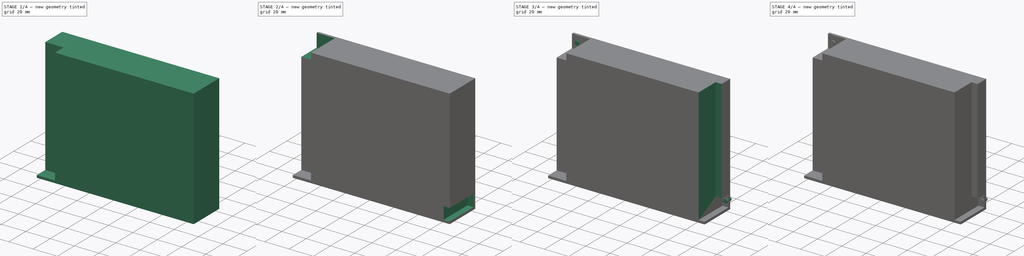
[diagram: build sequence overview — one tinted view per stage of 4, left to right]
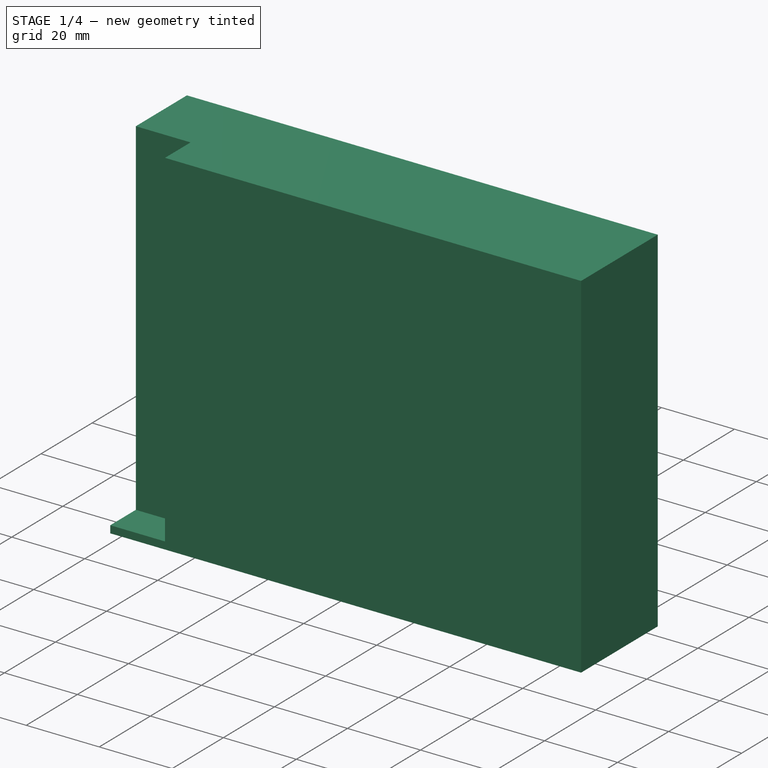
[diagram: stage 1 of 4 — iso view after this stage's code; geometry added in this stage tinted green]
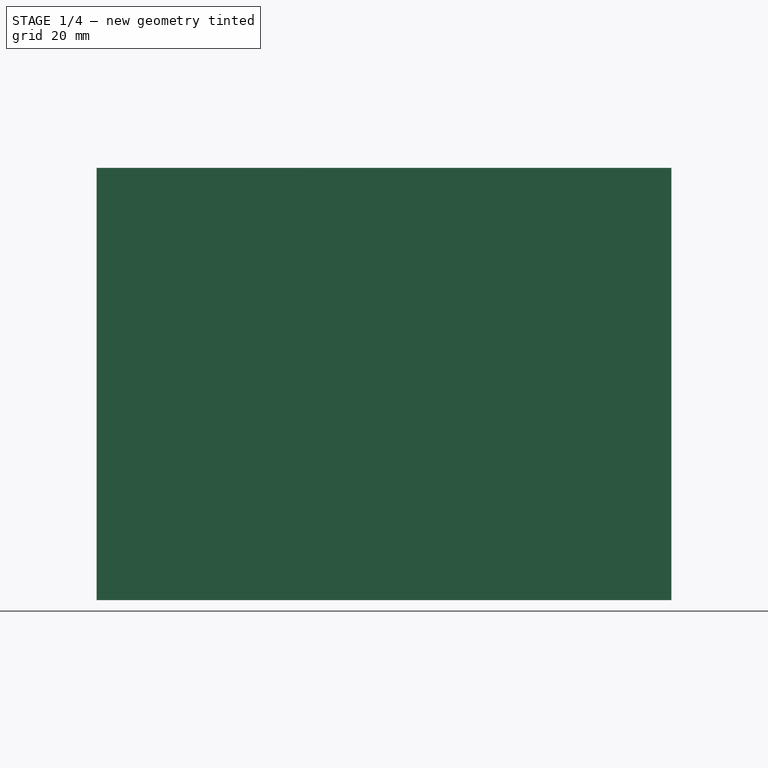
[diagram: stage 1 of 4 — front view after this stage's code; geometry added in this stage tinted green]
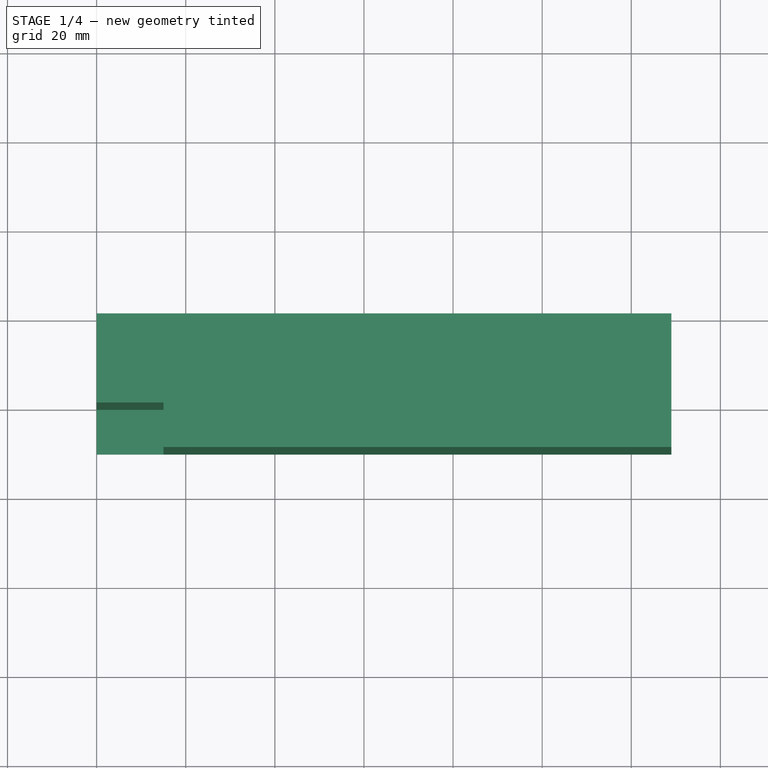
[diagram: stage 1 of 4 — top view after this stage's code; geometry added in this stage tinted green]
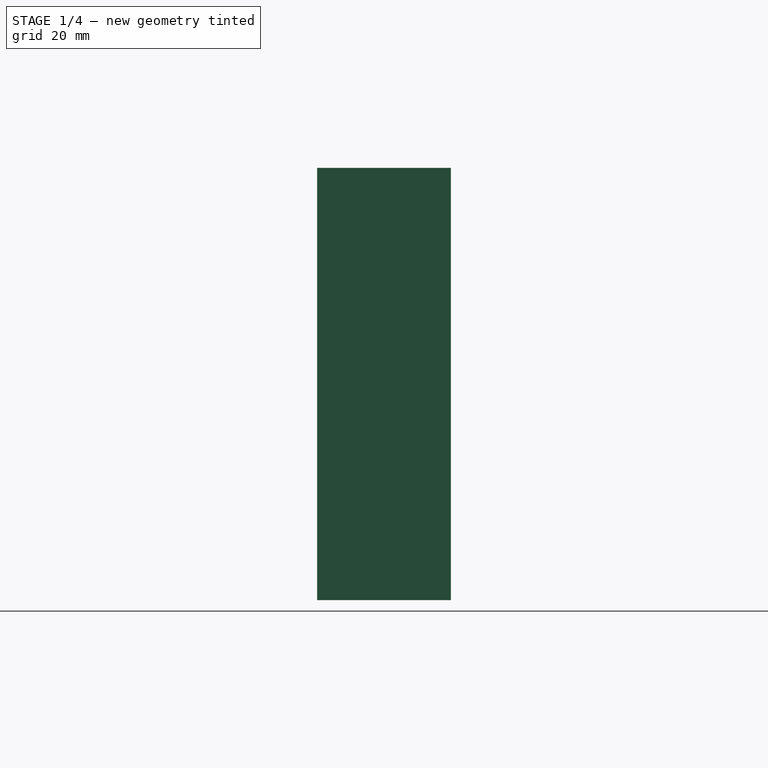
[diagram: stage 1 of 4 — right view after this stage's code; geometry added in this stage tinted green]
FCSTD DOCUMENT  (FreeCAD 0.19R24291 (Git))
Label: powersup
License: All rights reserved
LicenseURL: http://en.wikipedia.org/wiki/All_rights_reserved
objects: PartDesign::SubtractiveBox×4, PartDesign::AdditiveCylinder×4, Sketcher::SketchObject×1, PartDesign::Pad×1, PartDesign::Body×1
note: 20 computed .brp shape members not serialized (recipe doc carries the construction recipe); baked Part::Feature solids carry a one-line shape summary decoded from their .brp

FEATURE [Sketcher::SketchObject] Sketch
  FullyConstrained = false
  MapMode = 5
  Placement = pos=(0,0,0) rot=(1,0,0;1.5708rad)
  Support = -> [XZ_Plane]
  sketch-geometry (4):
    g0: LineSegment StartX=0 StartY=0 StartZ=0 EndX=129 EndY=0 EndZ=0
    g1: LineSegment StartX=129 StartY=0 StartZ=0 EndX=129 EndY=97 EndZ=0
    g2: LineSegment StartX=129 StartY=97 StartZ=0 EndX=0 EndY=97 EndZ=0
    g3: LineSegment StartX=0 StartY=97 StartZ=0 EndX=0 EndY=0 EndZ=0
  constraints (9):
    c: Coincident(g0,g1)
    c: Coincident(g1,g2)
    c: Coincident(g2,g3)
    c: Coincident(g3,g0)
    c: Horizontal(g0)
    c: Horizontal(g2)
    c: Vertical(g1)
    c: Vertical(g3)
    c: Coincident(g0,g-1)
FEATURE [PartDesign::Pad] Pad
  Direction = (1,1,1)
  Length = 30
  Length2 = 100
  Placement = pos=(0,0,0) rot=(1,0,0;1.5708rad)
  Profile = -> Sketch
  Refine = true
  Type = 0
FEATURE [PartDesign::SubtractiveBox] Box  label="cutoutabovescrews"
  AttacherType = Attacher::AttachEngine3D
  AttachmentOffset = pos=(0,2,-10) rot=(0,0,1;0rad)
  BaseFeature = -> Pad
  Height = 10
  Length = 15
  MapMode = 5
  Placement = pos=(0,-20,2) rot=(1,0,0;1.5708rad)
  Refine = true
  Support = -> [Pad]
  Width = 95
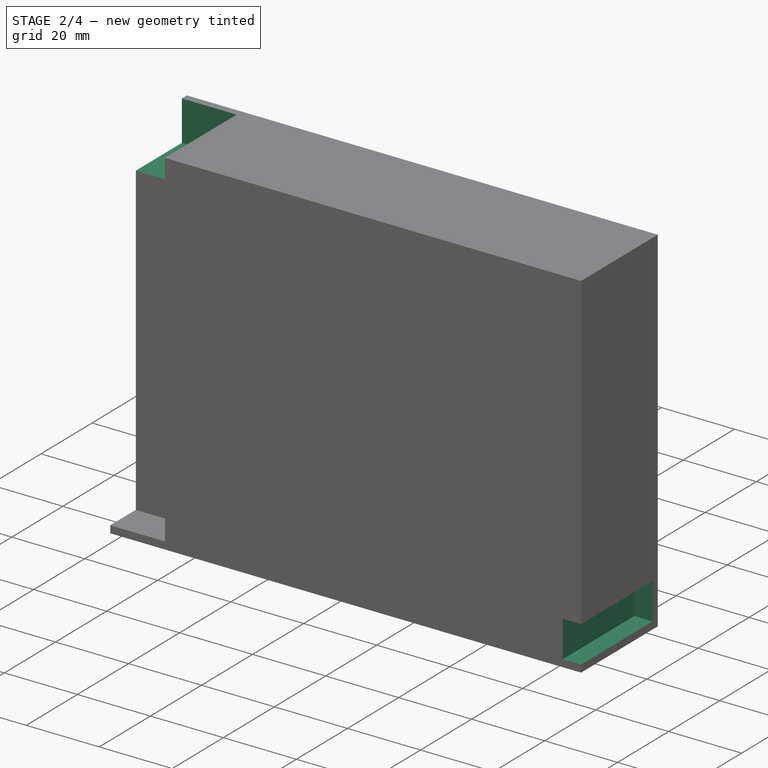
[diagram: stage 2 of 4 — iso view after this stage's code; geometry added in this stage tinted green]
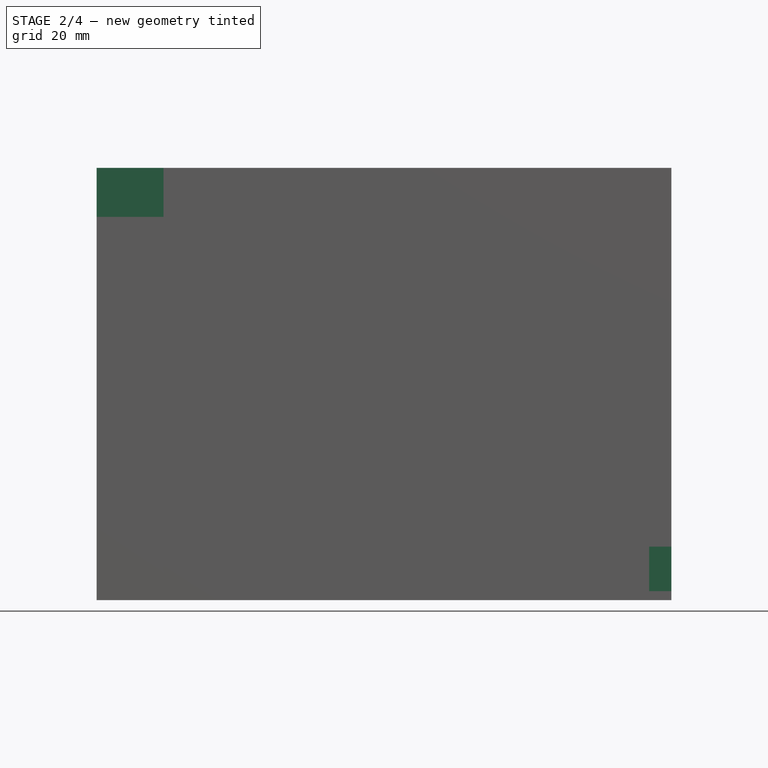
[diagram: stage 2 of 4 — front view after this stage's code; geometry added in this stage tinted green]
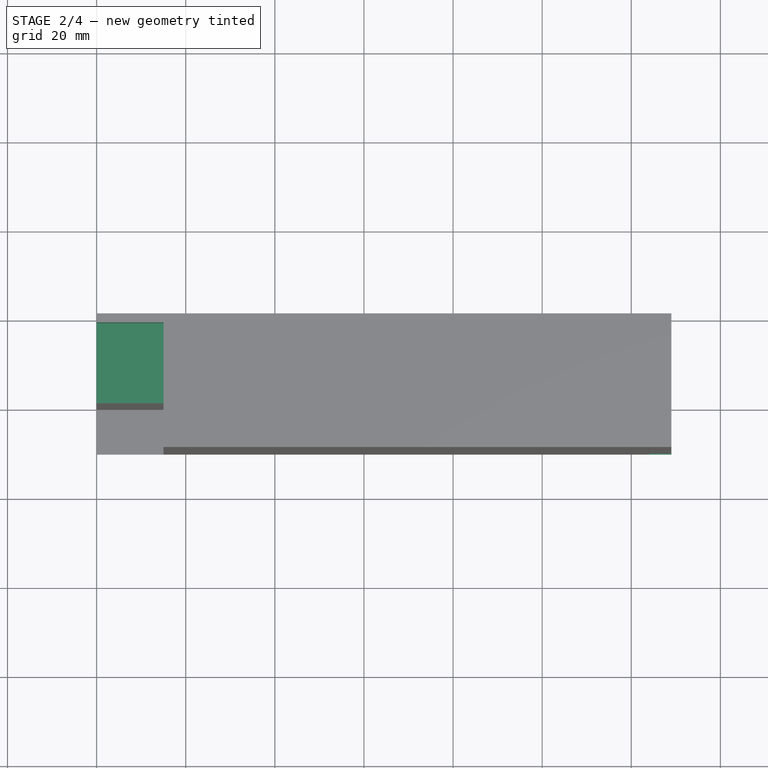
[diagram: stage 2 of 4 — top view after this stage's code; geometry added in this stage tinted green]
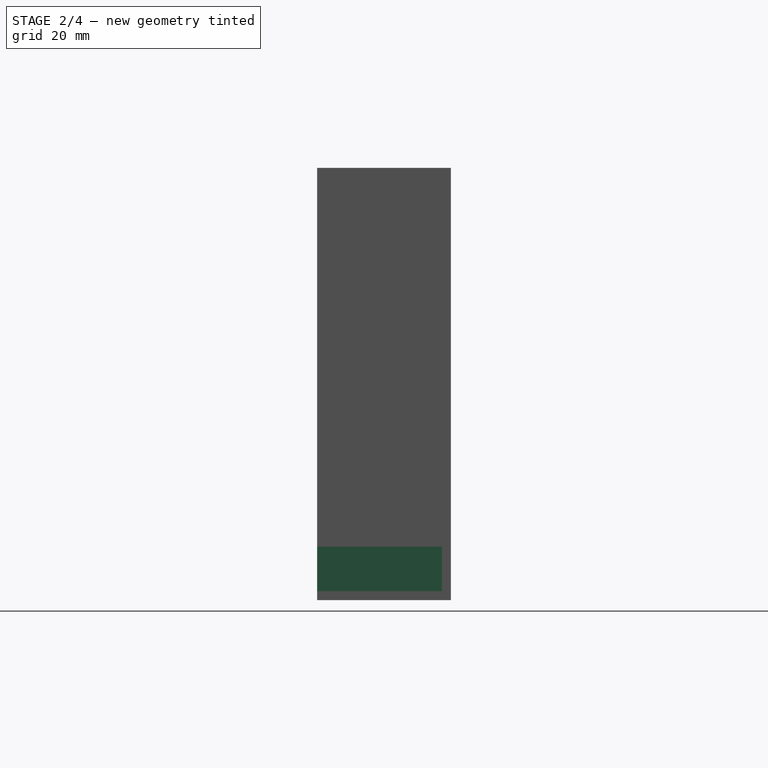
[diagram: stage 2 of 4 — right view after this stage's code; geometry added in this stage tinted green]
FEATURE [PartDesign::SubtractiveBox] Box001  label="cutoutabvtopleftscrew"
  AttacherType = Attacher::AttachEngine3D
  AttachmentOffset = pos=(0,84,-28) rot=(0,0,1;0rad)
  BaseFeature = -> Box
  Height = 28
  Length = 15
  MapMode = 5
  Placement = pos=(0,-2,86) rot=(1,0,0;1.5708rad)
  Refine = true
  Support = -> [Box]
  Width = 11
FEATURE [PartDesign::SubtractiveBox] Box002  label="cutoutabvbotrightscrew"
  AttacherType = Attacher::AttachEngine3D
  AttachmentOffset = pos=(124,-84,-28) rot=(0,0,1;0rad)
  BaseFeature = -> Box001
  Height = 28
  Length = 5
  MapMode = 5
  Placement = pos=(124,-2,2) rot=(1,0,0;1.5708rad)
  Refine = true
  Support = -> [Box001]
  Width = 10
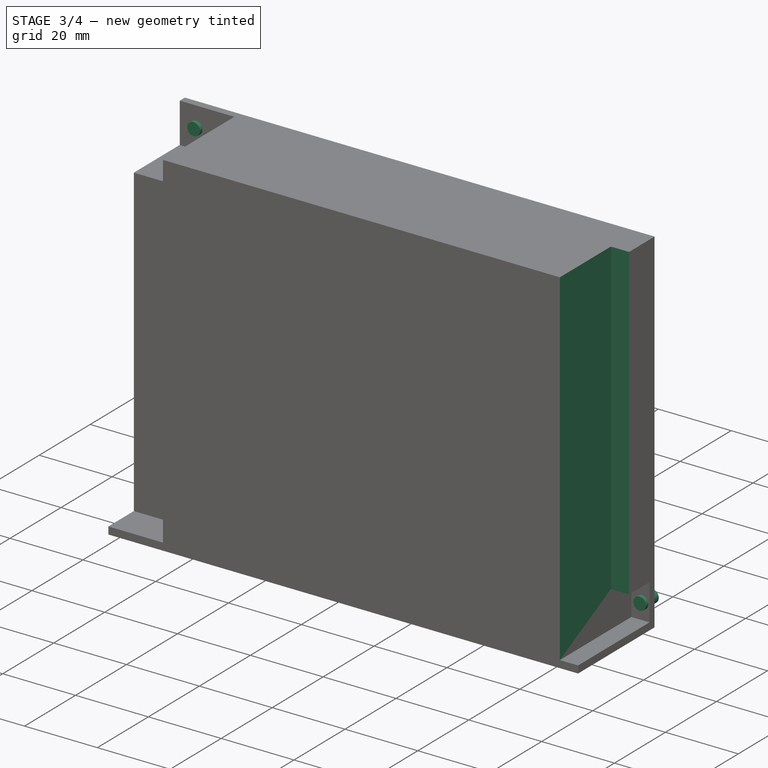
[diagram: stage 3 of 4 — iso view after this stage's code; geometry added in this stage tinted green]
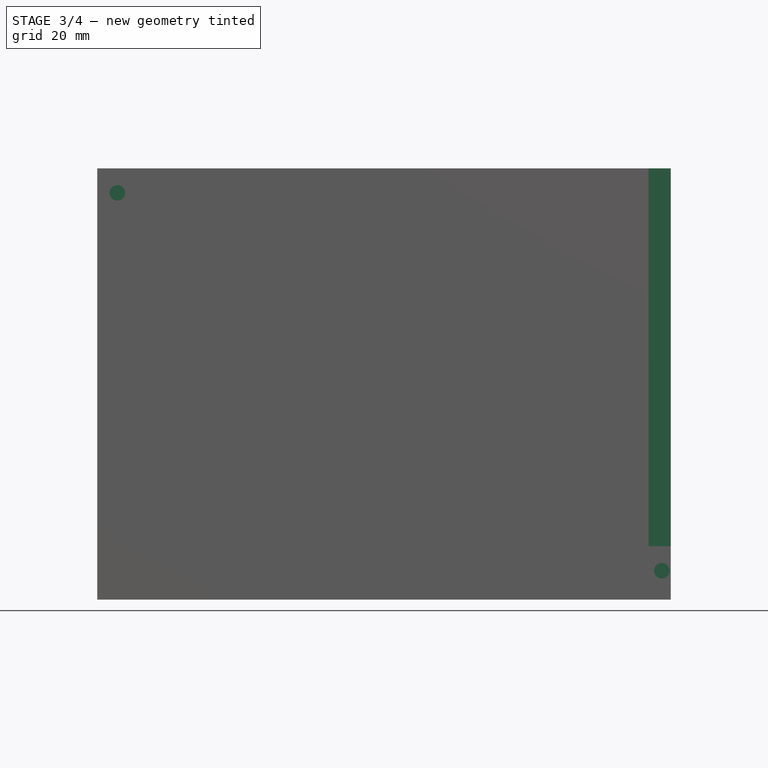
[diagram: stage 3 of 4 — front view after this stage's code; geometry added in this stage tinted green]
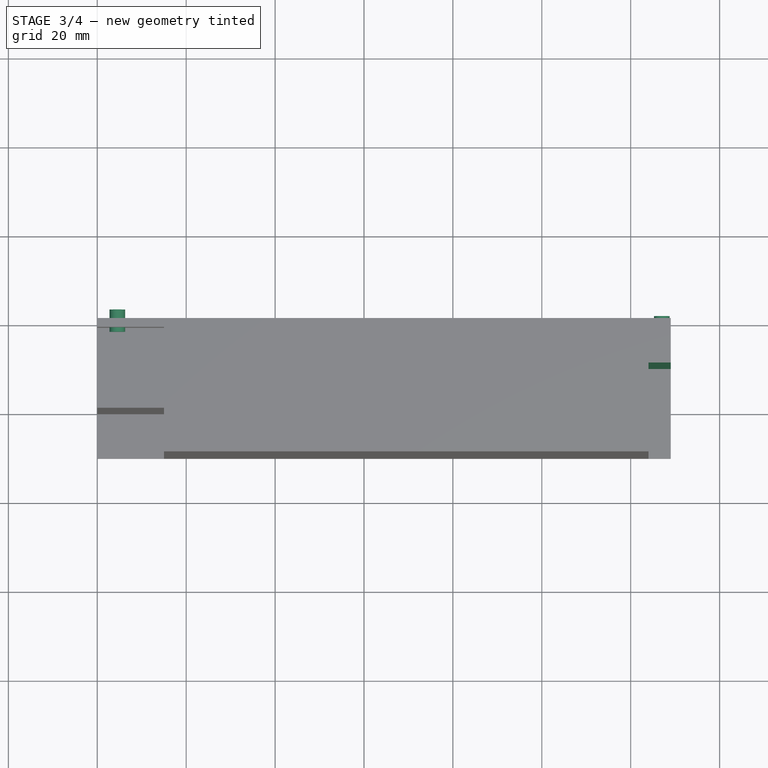
[diagram: stage 3 of 4 — top view after this stage's code; geometry added in this stage tinted green]
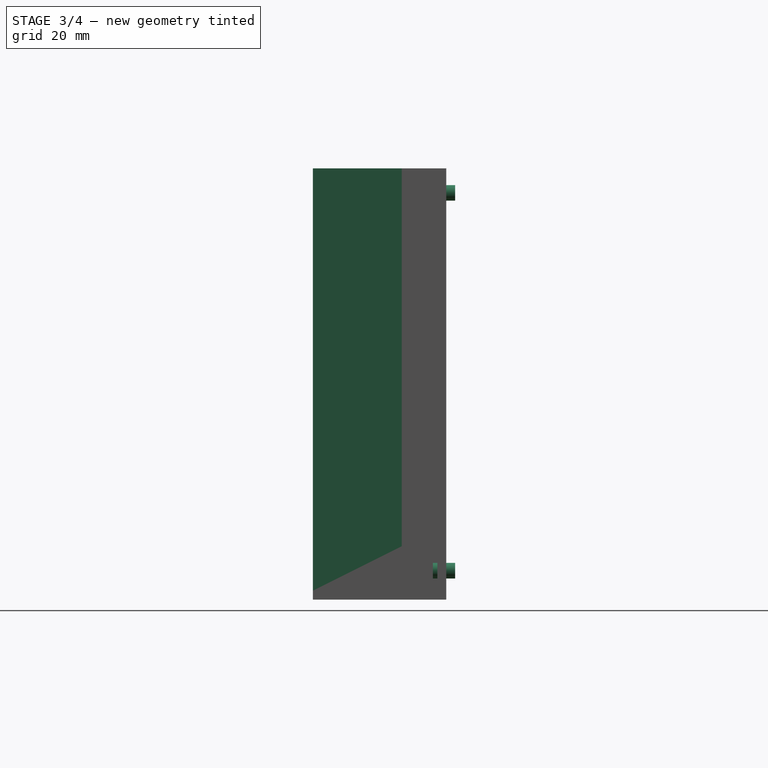
[diagram: stage 3 of 4 — right view after this stage's code; geometry added in this stage tinted green]
FEATURE [PartDesign::SubtractiveBox] Box003  label="cutoutalongrightedge"
  AttacherType = Attacher::AttachEngine3D
  AttachmentOffset = pos=(0,10,-20) rot=(0,0,1;0rad)
  BaseFeature = -> Box002
  Height = 20
  Length = 5
  MapMode = 5
  Placement = pos=(124,-10,12) rot=(1,0,0;1.5708rad)
  Refine = true
  Support = -> [Box002]
  Width = 85
FEATURE [PartDesign::AdditiveCylinder] Cylinder  label="lowerrightpeg"
  Angle = 360
  AttacherType = Attacher::AttachEngine3D
  AttachmentOffset = pos=(3,-5.5,-32) rot=(0,0,1;0rad)
  BaseFeature = -> Box003
  Height = 5
  MapMode = 5
  Placement = pos=(127,2,6.5) rot=(1,0,0;1.5708rad)
  Radius = 1.75
  Refine = true
  Support = -> [Box003]
FEATURE [PartDesign::AdditiveCylinder] Cylinder001  label="upperleftpeg"
  Angle = 360
  AttacherType = Attacher::AttachEngine3D
  AttachmentOffset = pos=(-122.5,85,-32) rot=(0,0,1;0rad)
  BaseFeature = -> Cylinder
  Height = 5
  MapMode = 5
  Placement = pos=(4.5,2,91.5) rot=(1,0,0;1.5708rad)
  Radius = 1.75
  Refine = true
  Support = -> [Cylinder]
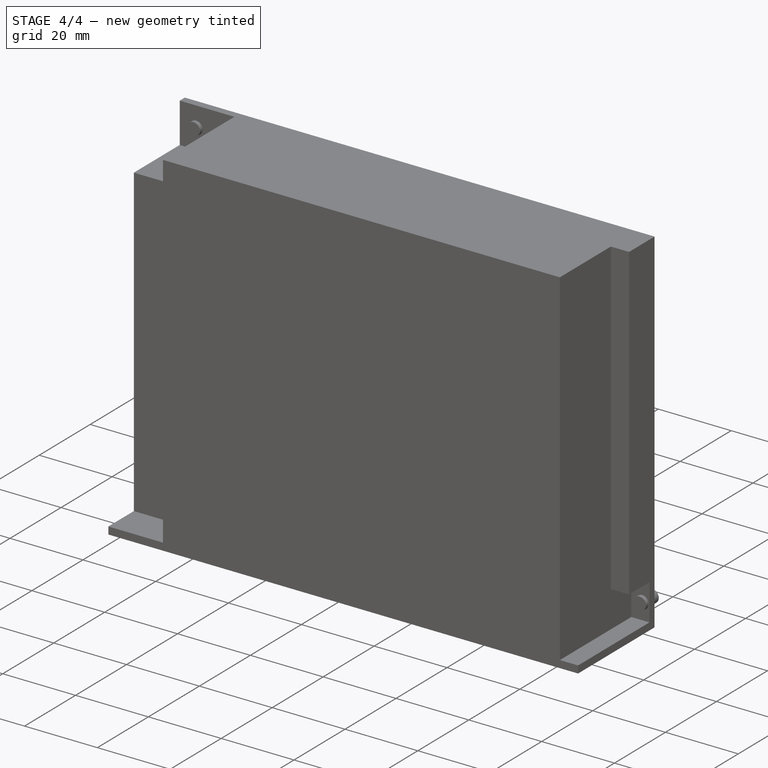
[diagram: stage 4 of 4 — iso view after this stage's code; geometry added in this stage tinted green]
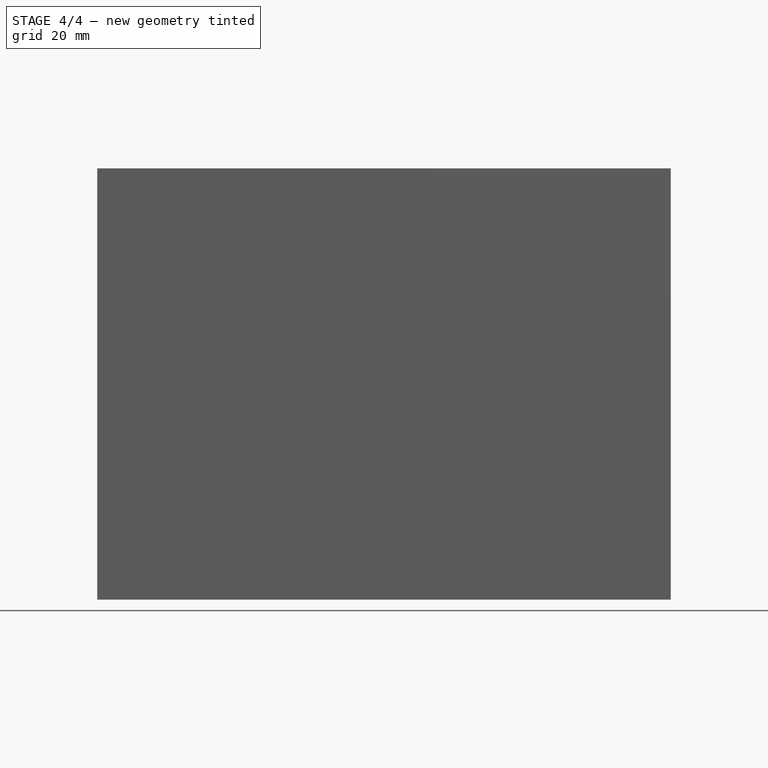
[diagram: stage 4 of 4 — front view after this stage's code; geometry added in this stage tinted green]
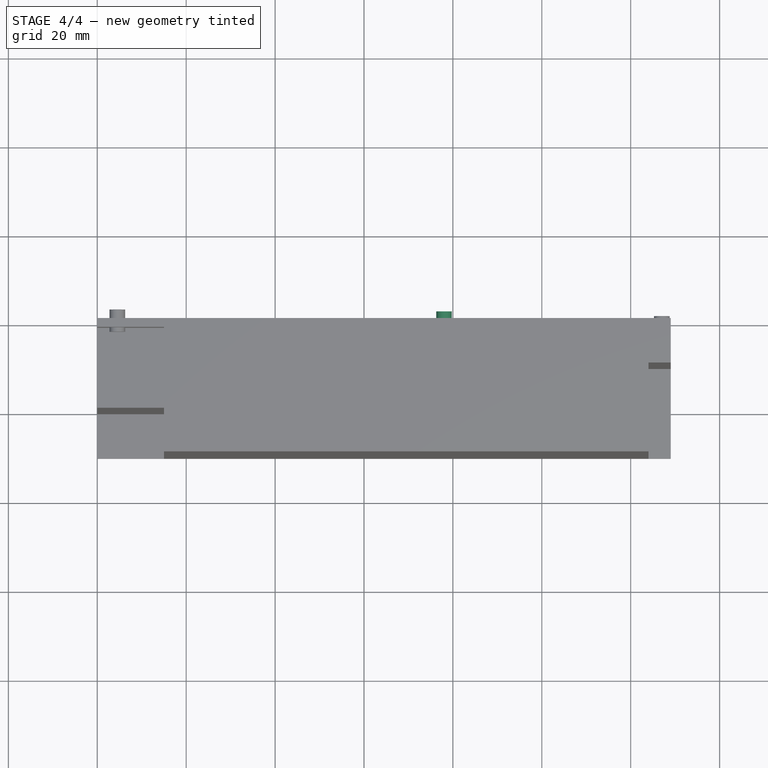
[diagram: stage 4 of 4 — top view after this stage's code; geometry added in this stage tinted green]
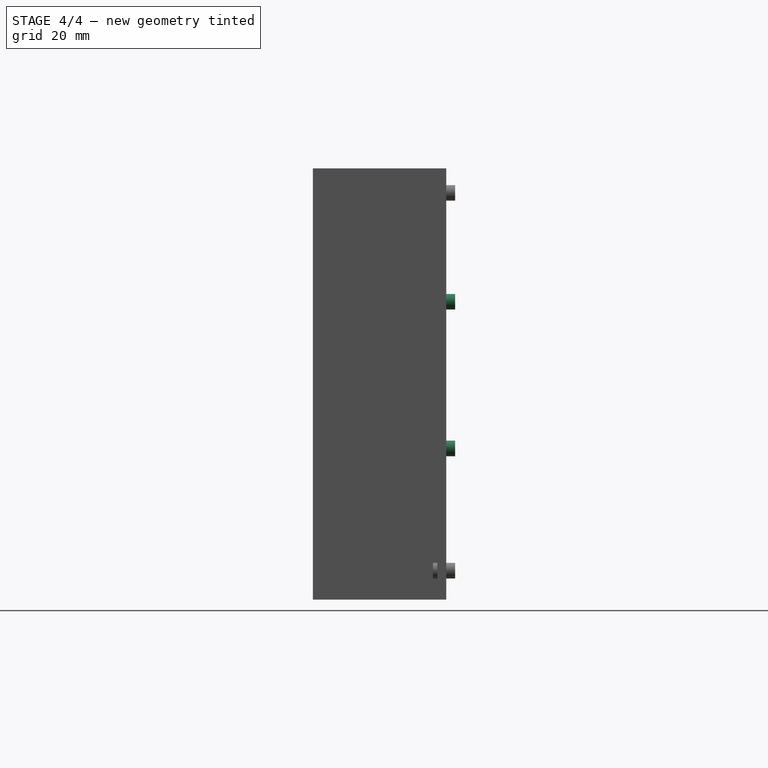
[diagram: stage 4 of 4 — right view after this stage's code; geometry added in this stage tinted green]
FEATURE [PartDesign::AdditiveCylinder] Cylinder002  label="lowermidpeg"
  Angle = 360
  AttacherType = Attacher::AttachEngine3D
  AttachmentOffset = pos=(73.5,-57.5,-32) rot=(0,0,1;0rad)
  BaseFeature = -> Cylinder001
  Height = 5
  MapMode = 5
  Placement = pos=(78,2,34) rot=(1,0,0;1.5708rad)
  Radius = 1.75
  Refine = true
  Support = -> [Cylinder001]
FEATURE [PartDesign::AdditiveCylinder] Cylinder003  label="uppermidpeg"
  Angle = 360
  AttacherType = Attacher::AttachEngine3D
  AttachmentOffset = pos=(0,33,-32) rot=(0,0,1;0rad)
  BaseFeature = -> Cylinder002
  Height = 5
  MapMode = 5
  Placement = pos=(78,2,67) rot=(1,0,0;1.5708rad)
  Radius = 1.75
  Refine = true
  Support = -> [Cylinder002]
FEATURE [PartDesign::Body] Body
  Group = -> [Sketch,Pad,Box,Box001,Box002,Box003,Cylinder,Cylinder001,Cylinder002,Cylinder003]
  Origin = -> Origin
  Tip = -> Cylinder003
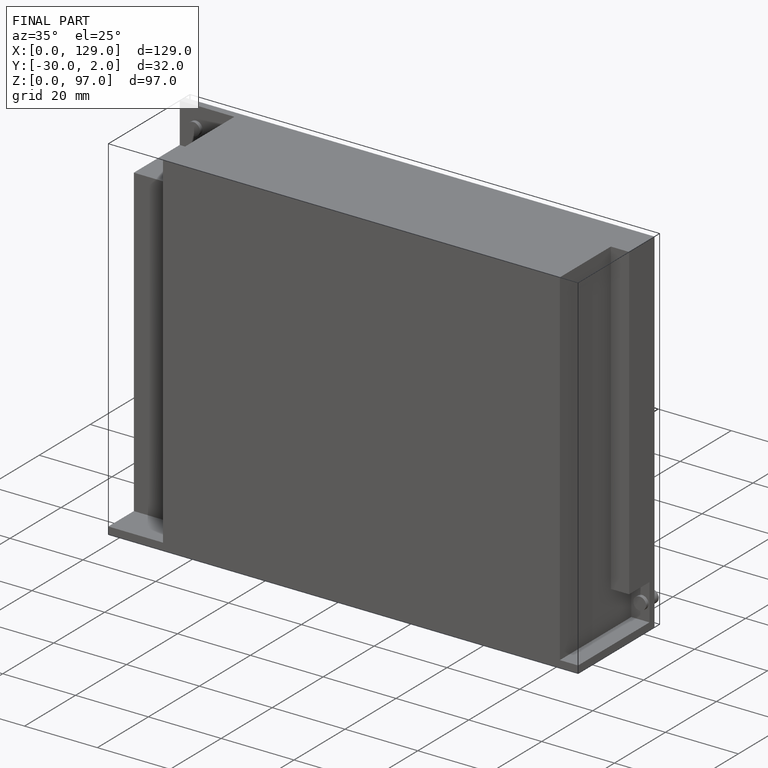
[diagram: finished part — iso view with bounding-box wireframe]
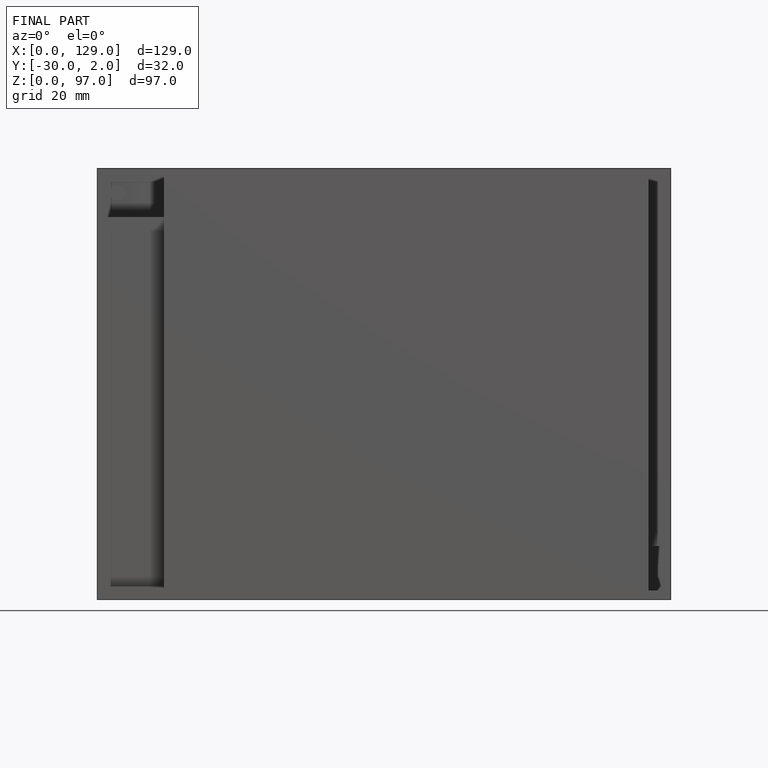
[diagram: finished part — front view with bounding-box wireframe]
